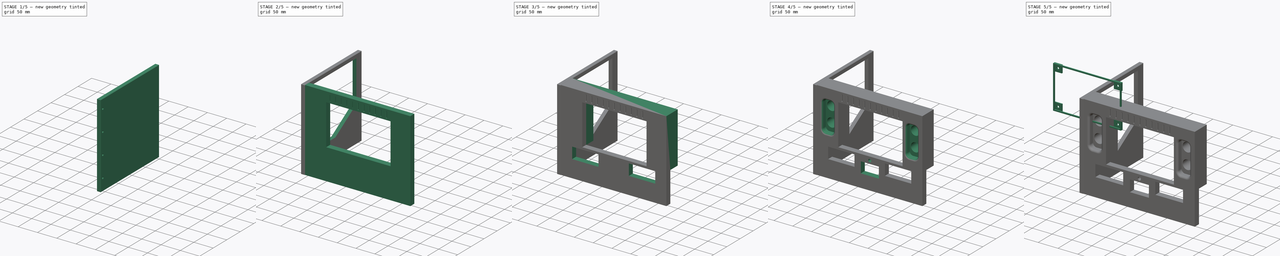
[diagram: build sequence overview — one tinted view per stage of 5, left to right]
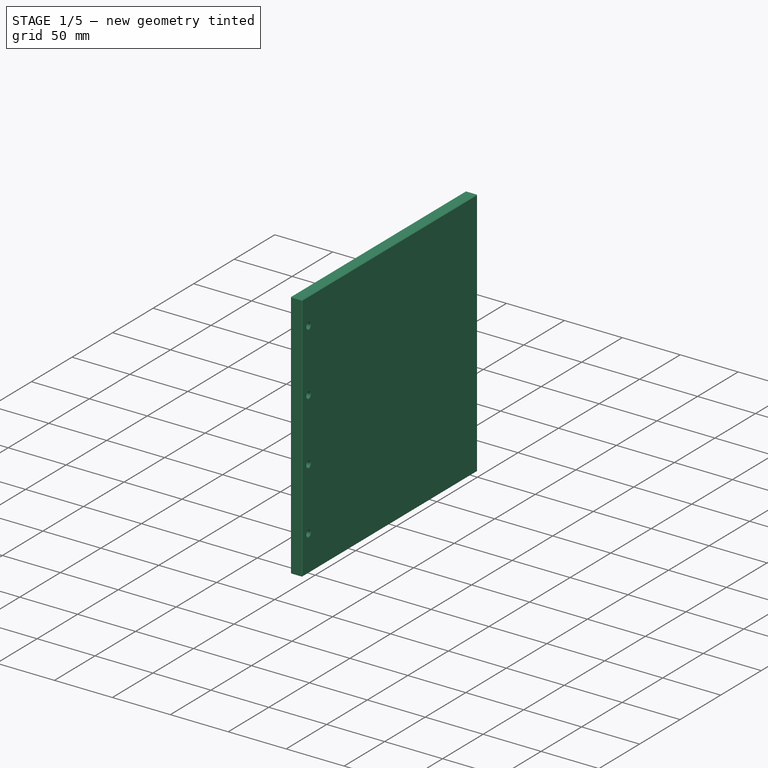
[diagram: stage 1 of 5 — iso view after this stage's code; geometry added in this stage tinted green]
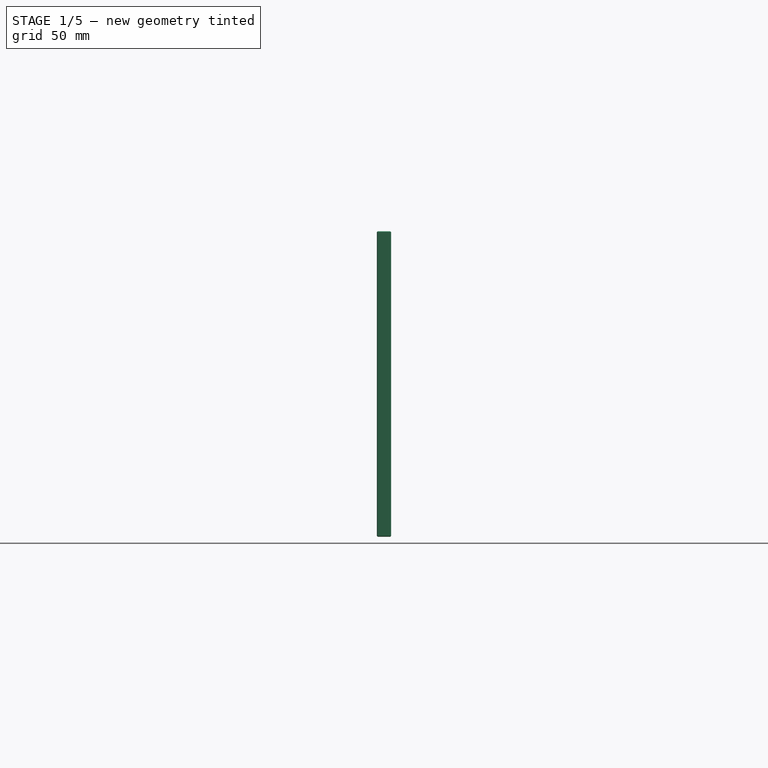
[diagram: stage 1 of 5 — front view after this stage's code; geometry added in this stage tinted green]
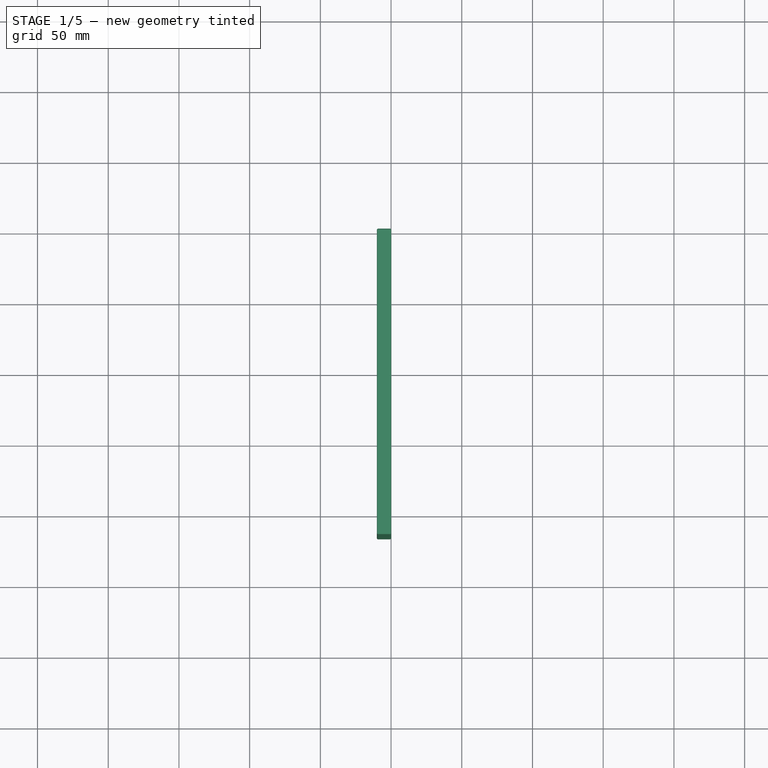
[diagram: stage 1 of 5 — top view after this stage's code; geometry added in this stage tinted green]
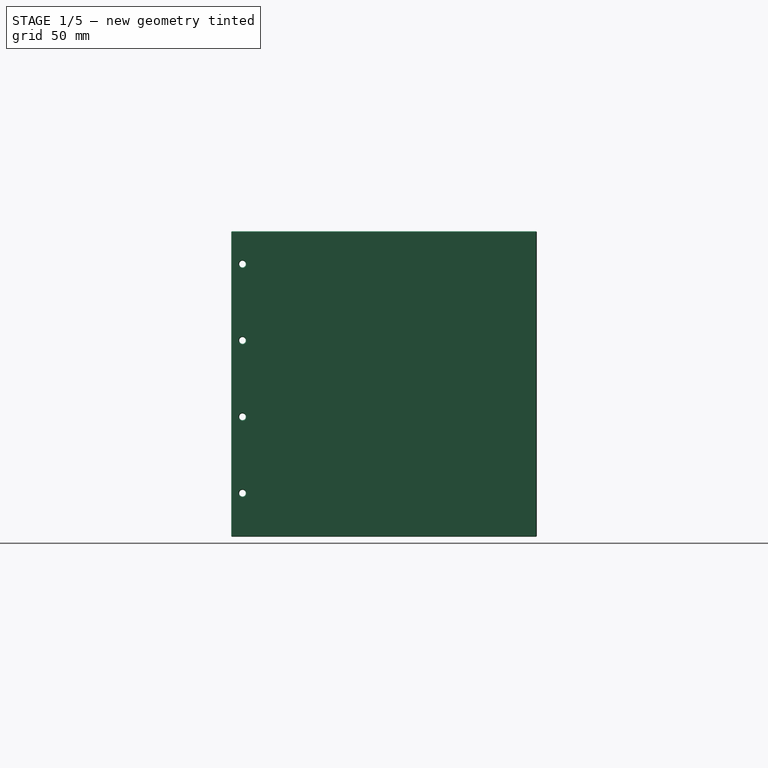
[diagram: stage 1 of 5 — right view after this stage's code; geometry added in this stage tinted green]
FCSTD DOCUMENT  (FreeCAD 1.0R39285 (Git))
Label: TerminalDawn_Screen
License: All rights reserved
LicenseURL: https://en.wikipedia.org/wiki/All_rights_reserved
objects: Sketcher::SketchObject×17, PartDesign::Pocket×10, PartDesign::Pad×6, PartDesign::Fillet×4, PartDesign::Point×4, PartDesign::Body×3, PartDesign::Chamfer×2
note: 107 computed .brp shape members not serialized (recipe doc carries the construction recipe); baked Part::Feature solids carry a one-line shape summary decoded from their .brp

FEATURE [Sketcher::SketchObject] Sketch011
  ArcFitTolerance = 1e-06
  AttachmentSupport = -> [YZ_Plane002]
  FullyConstrained = false
  MakeInternals = false
  MapMode = 5
  Placement = pos=(0,0,0) rot=(0.57735,0.57735,0.57735;2.0944rad)
  sketch-geometry (4):
    g0: LineSegment StartX=-16 StartY=0 StartZ=0 EndX=-16 EndY=-216 EndZ=0
    g1: LineSegment StartX=-16 StartY=-216 StartZ=0 EndX=200 EndY=-216 EndZ=0
    g2: LineSegment StartX=200 StartY=-216 StartZ=0 EndX=200 EndY=0 EndZ=0
    g3: LineSegment StartX=200 StartY=0 StartZ=0 EndX=-16 EndY=0 EndZ=0
  constraints (11):
    c: Coincident(g0,g1)
    c: Coincident(g1,g2)
    c: Coincident(g2,g3)
    c: Coincident(g3,g0)
    c: Vertical(g0)
    c: Vertical(g2)
    c: Horizontal(g1)
    c: Horizontal(g3)
    c: Distance(g0,g2) = 216
    c: Distance(g1,g3) = 216
    c: PointOnObject(g0,g-1)
FEATURE [PartDesign::Pad] Pad005
  Direction = (1,0,0)
  Length = 10
  Length2 = 10
  Placement = pos=(0,0,0) rot=(1,1,1;2.0944rad)
  Profile = -> Sketch011
  ReferenceAxis = -> Sketch011 [N_Axis]
  Refine = true
  Reversed = true
  Suppressed = false
  Type = 0
FEATURE [PartDesign::Point] DatumPoint
  AttacherType = Attacher::AttachEnginePoint
  AttachmentSupport = -> [Chamfer]
  MapMode = 36
  Placement = pos=(0,-7.06308,-23.2149) rot=(0.57735,-0.57735,-0.57735;4.18879rad)
FEATURE [PartDesign::Point] DatumPoint001
  AttacherType = Attacher::AttachEnginePoint
  AttachmentSupport = -> [Chamfer]
  MapMode = 36
  Placement = pos=(0,-7.06308,-77.2149) rot=(0.57735,-0.57735,-0.57735;4.18879rad)
FEATURE [PartDesign::Point] DatumPoint002
  AttacherType = Attacher::AttachEnginePoint
  AttachmentSupport = -> [Chamfer]
  MapMode = 36
  Placement = pos=(0,-7.06308,-131.215) rot=(0.57735,-0.57735,-0.57735;4.18879rad)
FEATURE [PartDesign::Point] DatumPoint003
  AttacherType = Attacher::AttachEnginePoint
  AttachmentSupport = -> [Chamfer]
  MapMode = 36
  Placement = pos=(0,-7.06308,-185.215) rot=(0.57735,-0.57735,-0.57735;4.18879rad)
FEATURE [PartDesign::Body] Body001  label="MonitorMount"
  AllowCompound = false
  Group = -> [Sketch,Pad,Sketch001,Pocket,Sketch002,Fillet,Fillet001,Fillet002,Sketch005,Pad003,Sketch006,Pad004,Sketch007,Pocket001,Sketch008,Pocket002,Pocket004,Fillet003,Sketch009,Pocket005,Sketch010,Pocket006,Sketch012,Pocket007,Chamfer,DatumPoint,DatumPoint001,DatumPoint002,DatumPoint003]
  Origin = -> Origin001
  Placement = pos=(-1.57631,-1,-1.8e-15) rot=(0,0,1;0rad)
  Tip = -> Chamfer
FEATURE [Sketcher::SketchObject] Sketch013
  ArcFitTolerance = 1e-06
  AttachmentSupport = -> [Pad005]
  FullyConstrained = true
  MakeInternals = false
  MapMode = 5
  Placement = pos=(-10,0,0) rot=(0.57735,0.57735,-0.57735;4.18879rad)
FEATURE [Sketcher::SketchObject] Sketch014
  ArcFitTolerance = 1e-06
  AttachmentSupport = -> [Pad005]
  FullyConstrained = false
  MakeInternals = false
  MapMode = 5
  Placement = pos=(-10,0,0) rot=(0.57735,0.57735,-0.57735;4.18879rad)
  sketch-geometry (4):
    g0: Circle CenterX=-8.06064 CenterY=185.203 CenterZ=0 NormalX=0 NormalY=0 NormalZ=1 AngleXU=0 Radius=2.35
    g1: Circle CenterX=-8.06064 CenterY=131.203 CenterZ=0 NormalX=0 NormalY=0 NormalZ=1 AngleXU=0 Radius=2.35
    g2: Circle CenterX=-8.06064 CenterY=77.2031 CenterZ=0 NormalX=0 NormalY=0 NormalZ=1 AngleXU=0 Radius=2.35
    g3: Circle CenterX=-8.06064 CenterY=23.2031 CenterZ=0 NormalX=0 NormalY=0 NormalZ=1 AngleXU=0 Radius=2.35
  constraints (4):
    c: Diameter(g0) = 4.7
    c: Diameter(g1) = 4.7
    c: Diameter(g2) = 4.7
    c: Diameter(g3) = 4.7
FEATURE [PartDesign::Pocket] Pocket008
  BaseFeature = -> Pad005
  Direction = (1,0,0)
  Length = 11
  Length2 = 5
  Placement = pos=(0,0,0) rot=(1,1,1;2.0944rad)
  Profile = -> Sketch014
  ReferenceAxis = -> Sketch014 [N_Axis]
  Refine = true
  Suppressed = false
  Type = 0
FEATURE [Sketcher::SketchObject] Sketch015
  ArcFitTolerance = 1e-06
  AttachmentSupport = -> [Pocket008]
  FullyConstrained = false
  MakeInternals = false
  MapMode = 5
  Placement = pos=(-10,2.2e-15,-1.1e-15) rot=(0.57735,0.57735,-0.57735;4.18879rad)
  sketch-geometry (4):
    g0: Circle CenterX=-8.0719 CenterY=23.1477 CenterZ=0 NormalX=0 NormalY=0 NormalZ=1 AngleXU=0 Radius=3.75
    g1: Circle CenterX=-8.0719 CenterY=77.1477 CenterZ=0 NormalX=0 NormalY=0 NormalZ=1 AngleXU=0 Radius=3.75
    g2: Circle CenterX=-8.0719 CenterY=131.148 CenterZ=0 NormalX=0 NormalY=0 NormalZ=1 AngleXU=0 Radius=3.75
    g3: Circle CenterX=-8.0719 CenterY=185.148 CenterZ=0 NormalX=0 NormalY=0 NormalZ=1 AngleXU=0 Radius=3.75
  constraints (4):
    c: Diameter(g0) = 7.5
    c: Diameter(g1) = 7.5
    c: Diameter(g2) = 7.5
    c: Diameter(g3) = 7.5
FEATURE [PartDesign::Pocket] Pocket009
  BaseFeature = -> Pocket008
  Direction = (1,0,0)
  Length = 5
  Length2 = 5
  Placement = pos=(0,0,0) rot=(1,1,1;2.0944rad)
  Profile = -> Sketch015
  ReferenceAxis = -> Sketch015 [N_Axis]
  Refine = true
  Suppressed = false
  Type = 0
FEATURE [PartDesign::Chamfer] Chamfer001
  Angle = 45
  Base = -> Pocket009 [Edge19,Edge20,Edge17,Edge18]
  BaseFeature = -> Pocket009
  ChamferType = 0
  FlipDirection = false
  Placement = pos=(0,0,0) rot=(1,1,1;2.0944rad)
  Refine = true
  Size = 0.5
  Size2 = 1
  SupportTransform = false
  Suppressed = false
  UseAllEdges = true
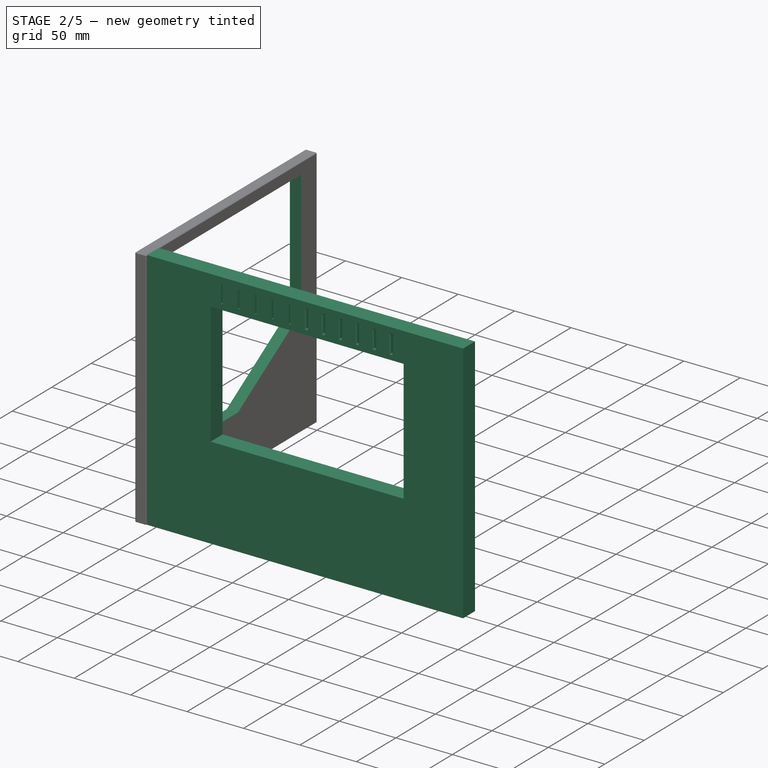
[diagram: stage 2 of 5 — iso view after this stage's code; geometry added in this stage tinted green]
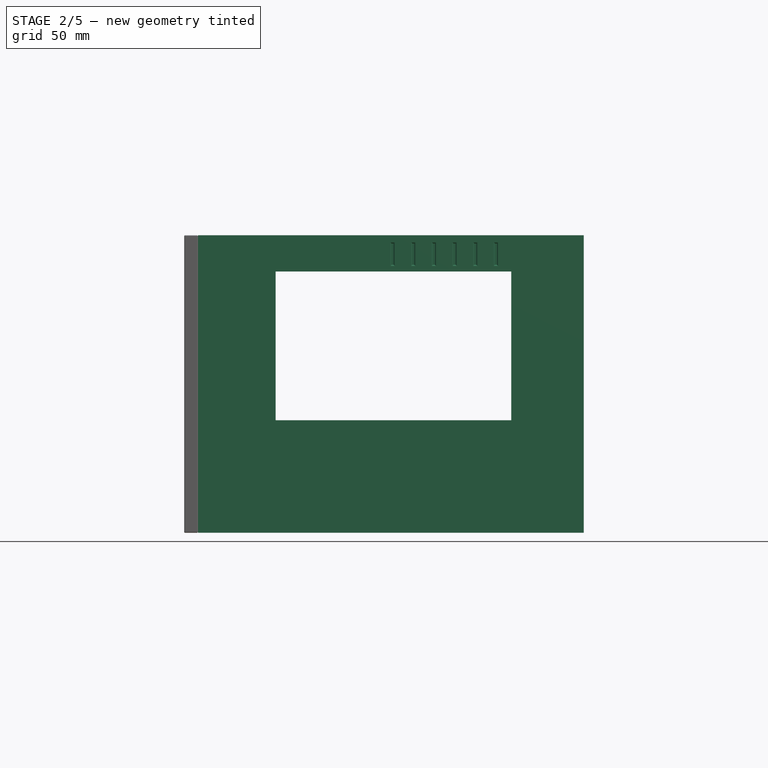
[diagram: stage 2 of 5 — front view after this stage's code; geometry added in this stage tinted green]
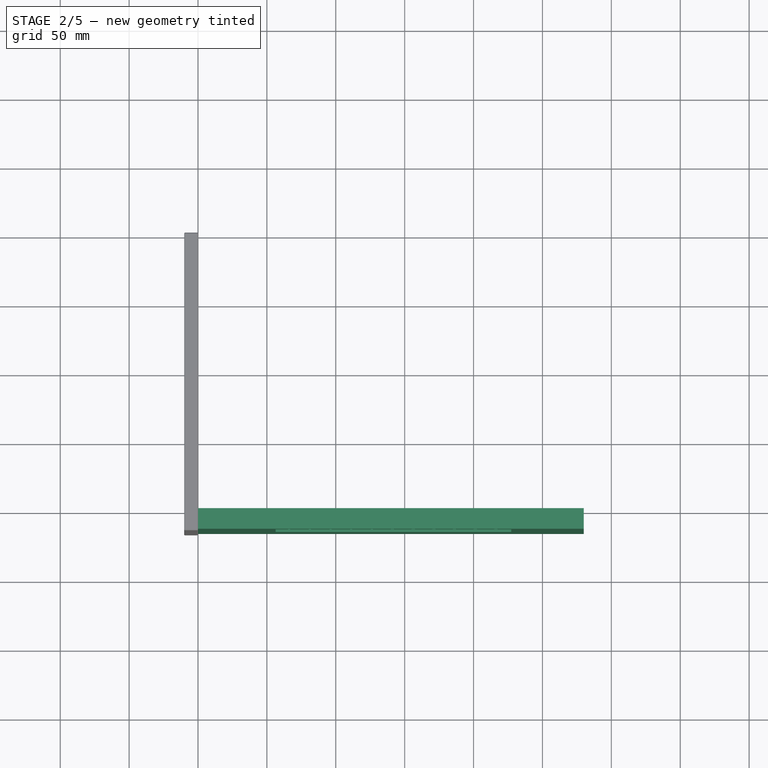
[diagram: stage 2 of 5 — top view after this stage's code; geometry added in this stage tinted green]
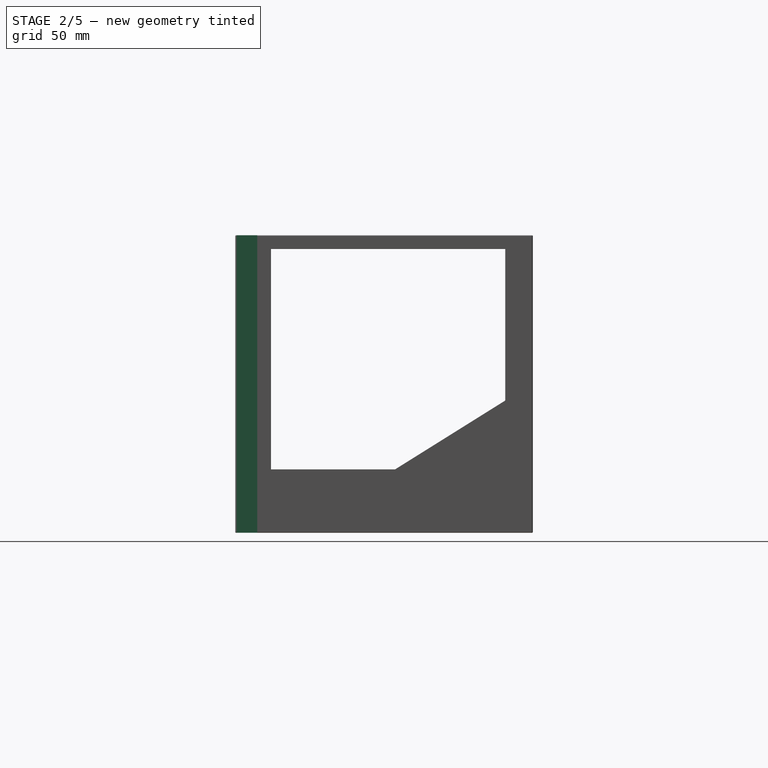
[diagram: stage 2 of 5 — right view after this stage's code; geometry added in this stage tinted green]
FEATURE [Sketcher::SketchObject] Sketch
  ArcFitTolerance = 1e-06
  AttachmentSupport = -> [XZ_Plane001]
  FullyConstrained = false
  MakeInternals = false
  MapMode = 5
  Placement = pos=(0,0,0) rot=(1,0,0;1.5708rad)
  sketch-geometry (8):
    g0: LineSegment StartX=0 StartY=0 StartZ=0 EndX=0 EndY=-216 EndZ=0
    g1: LineSegment StartX=0 StartY=-216 StartZ=0 EndX=280 EndY=-216 EndZ=0
    g2: LineSegment StartX=280 StartY=-216 StartZ=0 EndX=280 EndY=0 EndZ=0
    g3: LineSegment StartX=280 StartY=0 StartZ=0 EndX=0 EndY=0 EndZ=0
    g4: LineSegment StartX=56.3168 StartY=-26.3072 StartZ=0 EndX=56.3168 EndY=-134.307 EndZ=0
    g5: LineSegment StartX=56.3168 StartY=-134.307 StartZ=0 EndX=227.317 EndY=-134.307 EndZ=0
    g6: LineSegment StartX=227.317 StartY=-134.307 StartZ=0 EndX=227.317 EndY=-26.3072 EndZ=0
    g7: LineSegment StartX=227.317 StartY=-26.3072 StartZ=0 EndX=56.3168 EndY=-26.3072 EndZ=0
  constraints (21):
    c: Coincident(g0,g1)
    c: Coincident(g1,g2)
    c: Coincident(g2,g3)
    c: Coincident(g3,g0)
    c: Vertical(g0)
    c: Vertical(g2)
    c: Horizontal(g1)
    c: Horizontal(g3)
    c: Distance(g0,g2) = 280
    c: Distance(g1,g3) = 216
    c: Coincident(g0,g-1)
    c: Coincident(g4,g5)
    c: Coincident(g5,g6)
    c: Coincident(g6,g7)
    c: Coincident(g7,g4)
    c: Vertical(g4)
    c: Vertical(g6)
    c: Horizontal(g5)
    c: Horizontal(g7)
    c: Distance(g4,g6) = 171
    c: Distance(g5,g7) = 108
FEATURE [PartDesign::Pad] Pad
  Direction = (0,-1,2e-16)
  Length = 15
  Length2 = 10
  Placement = pos=(0,0,0) rot=(1,0,0;1.5708rad)
  Profile = -> Sketch
  ReferenceAxis = -> Sketch [N_Axis]
  Refine = true
  Suppressed = false
  Type = 0
FEATURE [Sketcher::SketchObject] Sketch001  label="MicroSD Slots"
  ArcFitTolerance = 1e-06
  AttachmentSupport = -> [Pad]
  FullyConstrained = false
  MakeInternals = false
  MapMode = 5
  Placement = pos=(0,-15,3.3e-15) rot=(1,0,0;1.5708rad)
  sketch-geometry (44):
    g0: LineSegment StartX=65.5 StartY=-6 StartZ=0 EndX=65.5 EndY=-21.5 EndZ=0
    g1: LineSegment StartX=65.5 StartY=-21.5 StartZ=0 EndX=67 EndY=-21.5 EndZ=0
    g2: LineSegment StartX=67 StartY=-21.5 StartZ=0 EndX=67 EndY=-6 EndZ=0
    g3: LineSegment StartX=67 StartY=-6 StartZ=0 EndX=65.5 EndY=-6 EndZ=0
    g4: LineSegment StartX=80.5 StartY=-6 StartZ=0 EndX=80.5 EndY=-21.5 EndZ=0
    g5: LineSegment StartX=80.5 StartY=-21.5 StartZ=0 EndX=82 EndY=-21.5 EndZ=0
    g6: LineSegment StartX=82 StartY=-21.5 StartZ=0 EndX=82 EndY=-6 EndZ=0
    g7: LineSegment StartX=82 StartY=-6 StartZ=0 EndX=80.5 EndY=-6 EndZ=0
    g8: LineSegment StartX=95.5 StartY=-6 StartZ=0 EndX=95.5 EndY=-21.5 EndZ=0
    g9: LineSegment StartX=95.5 StartY=-21.5 StartZ=0 EndX=97 EndY=-21.5 EndZ=0
    g10: LineSegment StartX=97 StartY=-21.5 StartZ=0 EndX=97 EndY=-6 EndZ=0
    g11: LineSegment StartX=97 StartY=-6 StartZ=0 EndX=95.5 EndY=-6 EndZ=0
    g12: LineSegment StartX=110.5 StartY=-6 StartZ=0 EndX=110.5 EndY=-21.5 EndZ=0
    g13: LineSegment StartX=110.5 StartY=-21.5 StartZ=0 EndX=112 EndY=-21.5 EndZ=0
    g14: LineSegment StartX=112 StartY=-21.5 StartZ=0 EndX=112 EndY=-6 EndZ=0
    g15: LineSegment StartX=112 StartY=-6 StartZ=0 EndX=110.5 EndY=-6 EndZ=0
    g16: LineSegment StartX=125.5 StartY=-6 StartZ=0 EndX=125.5 EndY=-21.5 EndZ=0
    g17: LineSegment StartX=125.5 StartY=-21.5 StartZ=0 EndX=127 EndY=-21.5 EndZ=0
    g18: LineSegment StartX=127 StartY=-21.5 StartZ=0 EndX=127 EndY=-6 EndZ=0
    g19: LineSegment StartX=127 StartY=-6 StartZ=0 EndX=125.5 EndY=-6 EndZ=0
    g20: LineSegment StartX=140.5 StartY=-6 StartZ=0 EndX=140.5 EndY=-21.5 EndZ=0
    g21: LineSegment StartX=140.5 StartY=-21.5 StartZ=0 EndX=142 EndY=-21.5 EndZ=0
    g22: LineSegment StartX=142 StartY=-21.5 StartZ=0 EndX=142 EndY=-6 EndZ=0
    g23: LineSegment StartX=142 StartY=-6 StartZ=0 EndX=140.5 EndY=-6 EndZ=0
    g24: LineSegment StartX=155.5 StartY=-6 StartZ=0 EndX=155.5 EndY=-21.5 EndZ=0
    g25: LineSegment StartX=155.5 StartY=-21.5 StartZ=0 EndX=157 EndY=-21.5 EndZ=0
    g26: LineSegment StartX=157 StartY=-21.5 StartZ=0 EndX=157 EndY=-6 EndZ=0
    g27: LineSegment StartX=157 StartY=-6 StartZ=0 EndX=155.5 EndY=-6 EndZ=0
    g28: LineSegment StartX=170.5 StartY=-6 StartZ=0 EndX=170.5 EndY=-21.5 EndZ=0
    g29: LineSegment StartX=170.5 StartY=-21.5 StartZ=0 EndX=172 EndY=-21.5 EndZ=0
    g30: LineSegment StartX=172 StartY=-21.5 StartZ=0 EndX=172 EndY=-6 EndZ=0
    g31: LineSegment StartX=172 StartY=-6 StartZ=0 EndX=170.5 EndY=-6 EndZ=0
    g32: LineSegment StartX=185.5 StartY=-6 StartZ=0 EndX=185.5 EndY=-21.5 EndZ=0
    g33: LineSegment StartX=185.5 StartY=-21.5 StartZ=0 EndX=187 EndY=-21.5 EndZ=0
    g34: LineSegment StartX=187 StartY=-21.5 StartZ=0 EndX=187 EndY=-6 EndZ=0
    g35: LineSegment StartX=187 StartY=-6 StartZ=0 EndX=185.5 EndY=-6 EndZ=0
    g36: LineSegment StartX=200.5 StartY=-6 StartZ=0 EndX=200.5 EndY=-21.5 EndZ=0
    g37: LineSegment StartX=200.5 StartY=-21.5 StartZ=0 EndX=202 EndY=-21.5 EndZ=0
    g38: LineSegment StartX=202 StartY=-21.5 StartZ=0 EndX=202 EndY=-6 EndZ=0
    g39: LineSegment StartX=202 StartY=-6 StartZ=0 EndX=200.5 EndY=-6 EndZ=0
    g40: LineSegment StartX=215.5 StartY=-6 StartZ=0 EndX=215.5 EndY=-21.5 EndZ=0
    g41: LineSegment StartX=215.5 StartY=-21.5 StartZ=0 EndX=217 EndY=-21.5 EndZ=0
    g42: LineSegment StartX=217 StartY=-21.5 StartZ=0 EndX=217 EndY=-6 EndZ=0
    g43: LineSegment StartX=217 StartY=-6 StartZ=0 EndX=215.5 EndY=-6 EndZ=0
  constraints (66):
    c: Coincident(g0,g1)
    c: Coincident(g1,g2)
    c: Coincident(g2,g3)
    c: Coincident(g3,g0)
    c: Distance(g1,g3) = 15.5
    c: Distance(g0,g2) = 1.5
    c: Coincident(g4,g5)
    c: Coincident(g8,g9)
    c: Coincident(g12,g13)
    c: Coincident(g16,g17)
    c: Coincident(g20,g21)
    c: Coincident(g24,g25)
    c: Coincident(g28,g29)
    c: Coincident(g32,g33)
    c: Coincident(g36,g37)
    c: Coincident(g40,g41)
    c: Coincident(g5,g6)
    c: Coincident(g9,g10)
    c: Coincident(g13,g14)
    c: Coincident(g17,g18)
    c: Coincident(g21,g22)
    c: Coincident(g25,g26)
    c: Coincident(g29,g30)
    c: Coincident(g33,g34)
    c: Coincident(g37,g38)
    c: Coincident(g41,g42)
    c: Coincident(g6,g7)
    c: Coincident(g10,g11)
    c: Coincident(g14,g15)
    c: Coincident(g18,g19)
    c: Coincident(g22,g23)
    c: Coincident(g26,g27)
    c: Coincident(g30,g31)
    c: Coincident(g34,g35)
    c: Coincident(g38,g39)
    c: Coincident(g42,g43)
    c: Coincident(g7,g4)
    c: Coincident(g11,g8)
    c: Coincident(g15,g12)
    c: Coincident(g19,g16)
    c: Coincident(g23,g20)
    c: Coincident(g27,g24)
    c: Coincident(g31,g28)
    c: Coincident(g35,g32)
    c: Coincident(g39,g36)
    c: Coincident(g43,g40)
    c: Distance(g5,g7) = 15.5
    c: Distance(g9,g11) = 15.5
    c: Distance(g13,g15) = 15.5
    c: Distance(g17,g19) = 15.5
    c: Distance(g21,g23) = 15.5
    c: Distance(g25,g27) = 15.5
    c: Distance(g29,g31) = 15.5
    c: Distance(g33,g35) = 15.5
    c: Distance(g37,g39) = 15.5
    c: Distance(g41,g43) = 15.5
    c: Distance(g4,g6) = 1.5
    c: Distance(g8,g10) = 1.5
    c: Distance(g12,g14) = 1.5
    c: Distance(g16,g18) = 1.5
    c: Distance(g20,g22) = 1.5
    c: Distance(g24,g26) = 1.5
    c: Distance(g28,g30) = 1.5
    c: Distance(g32,g34) = 1.5
    c: Distance(g36,g38) = 1.5
    c: Distance(g40,g42) = 1.5
FEATURE [PartDesign::Pocket] Pocket
  BaseFeature = -> Pad
  Direction = (0,1,-2e-16)
  Length = 8
  Length2 = 5
  Placement = pos=(0,0,0) rot=(1,0,0;1.5708rad)
  Profile = -> Sketch001
  ReferenceAxis = -> Sketch001 [N_Axis]
  Refine = true
  Suppressed = false
  Type = 0
FEATURE [Sketcher::SketchObject] Sketch002
  ArcFitTolerance = 1e-06
  AttachmentSupport = -> [Pocket]
  FullyConstrained = true
  MakeInternals = false
  MapMode = 5
  Placement = pos=(56.3168,0,0) rot=(0.707107,0,0.707107;3.14159rad)
FEATURE [PartDesign::Fillet] Fillet
  Base = -> Pocket [Edge62,Vertex57,Edge61,Edge64,Edge63]
  BaseFeature = -> Pocket
  Placement = pos=(0,0,0) rot=(1,0,0;1.5708rad)
  Radius = 1
  Refine = true
  SupportTransform = false
  Suppressed = false
  UseAllEdges = false
FEATURE [PartDesign::Fillet] Fillet001
  Base = -> Fillet [Edge49,Edge50,Edge52,Edge51,Edge47,Edge46,Edge48,Edge45,Edge41,Edge44,Edge42,Edge43,Edge39,Edge40,Edge38,Edge37,Edge29,Edge30,Edge32,Edge31]
  BaseFeature = -> Fillet
  Placement = pos=(0,0,0) rot=(1,0,0;1.5708rad)
  Radius = 1
  Refine = true
  SupportTransform = false
  Suppressed = false
  UseAllEdges = false
FEATURE [Sketcher::SketchObject] Sketch016
  ArcFitTolerance = 1e-06
  AttachmentSupport = -> [Chamfer001]
  FullyConstrained = false
  MakeInternals = false
  MapMode = 5
  Placement = pos=(-10,4.4e-15,-2.2e-15) rot=(0.57735,0.57735,-0.57735;4.18879rad)
  sketch-geometry (5):
    g0: LineSegment StartX=180 StartY=10 StartZ=0 EndX=10 EndY=10 EndZ=0
    g1: LineSegment StartX=10 StartY=10 StartZ=0 EndX=10 EndY=170 EndZ=0
    g2: LineSegment StartX=10 StartY=170 StartZ=0 EndX=100 EndY=170 EndZ=0
    g3: LineSegment StartX=100 StartY=170 StartZ=0 EndX=180 EndY=120 EndZ=0
    g4: LineSegment StartX=180 StartY=120 StartZ=0 EndX=180 EndY=10 EndZ=0
  constraints (9):
    c: Horizontal(g0)
    c: Coincident(g0,g1)
    c: Vertical(g1)
    c: Coincident(g1,g2)
    c: Horizontal(g2)
    c: Coincident(g2,g3)
    c: Coincident(g3,g4)
    c: Coincident(g4,g0)
    c: Vertical(g4)
FEATURE [PartDesign::Pocket] Pocket010
  BaseFeature = -> Chamfer001
  Direction = (1,0,0)
  Length = 10
  Length2 = 5
  Placement = pos=(0,0,0) rot=(1,1,1;2.0944rad)
  Profile = -> Sketch016
  ReferenceAxis = -> Sketch016 [N_Axis]
  Refine = true
  Suppressed = false
  Type = 0
FEATURE [PartDesign::Body] Body002  label="Left Side"
  AllowCompound = false
  Group = -> [Sketch011,Pad005,Sketch013,Sketch014,Pocket008,Sketch015,Pocket009,Chamfer001,Sketch016,Pocket010]
  Origin = -> Origin002
  Tip = -> Pocket010
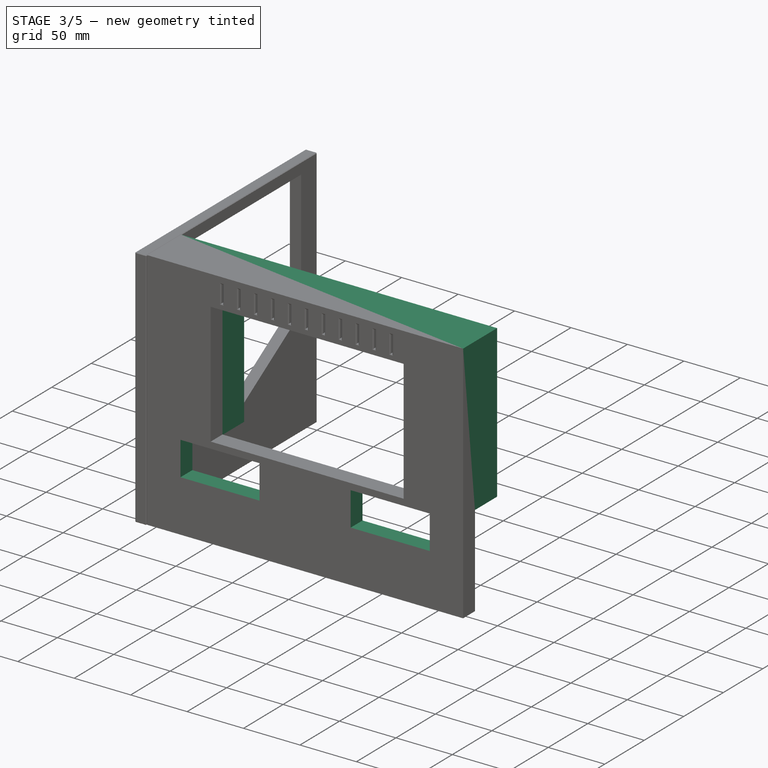
[diagram: stage 3 of 5 — iso view after this stage's code; geometry added in this stage tinted green]
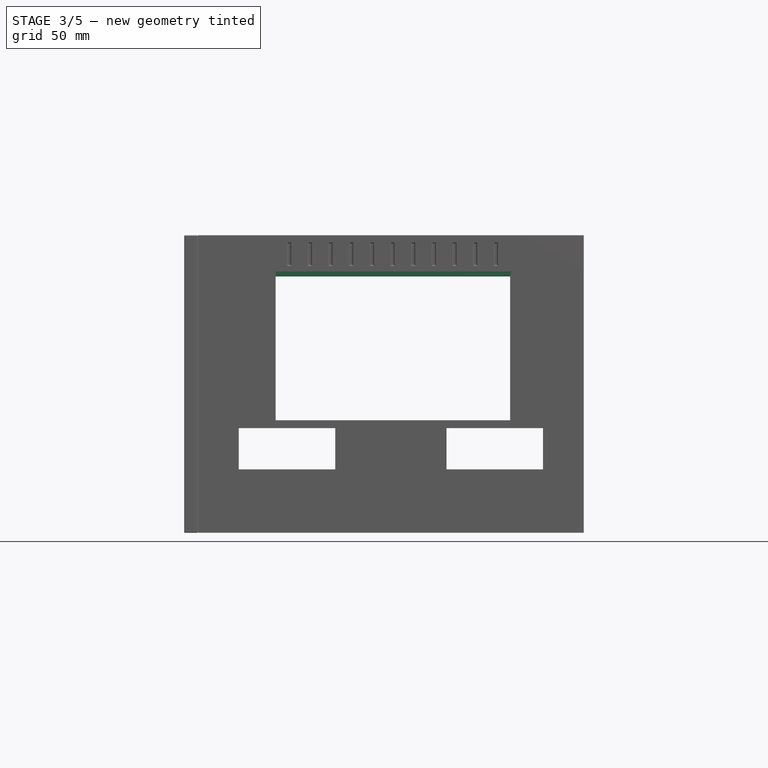
[diagram: stage 3 of 5 — front view after this stage's code; geometry added in this stage tinted green]
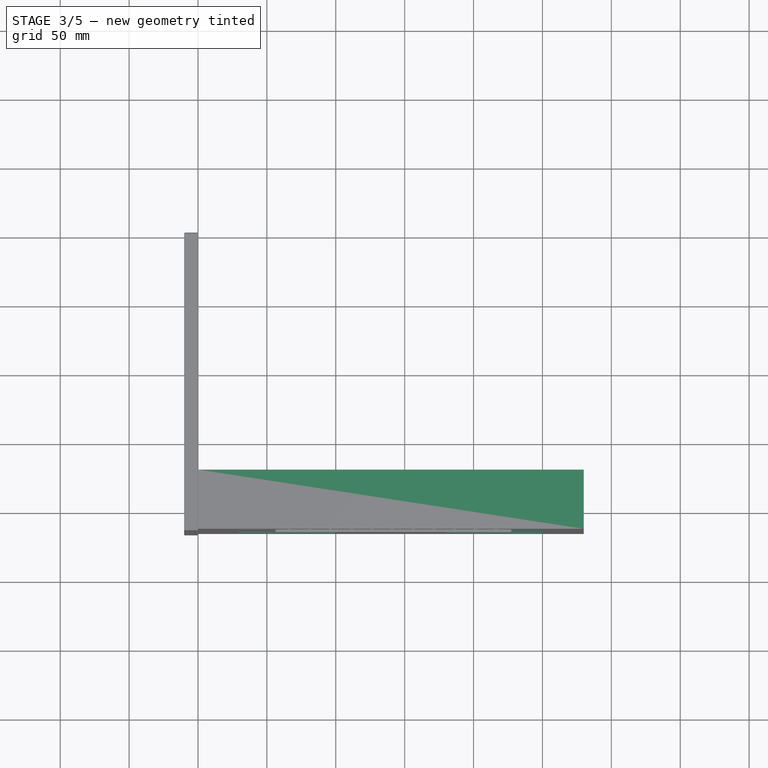
[diagram: stage 3 of 5 — top view after this stage's code; geometry added in this stage tinted green]
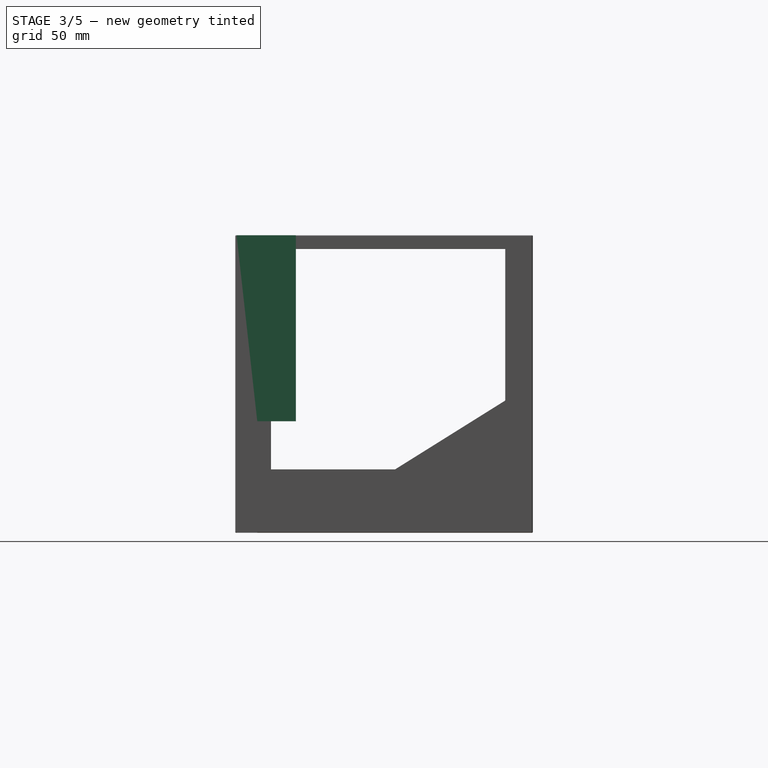
[diagram: stage 3 of 5 — right view after this stage's code; geometry added in this stage tinted green]
FEATURE [PartDesign::Fillet] Fillet002
  Base = -> Fillet001 [Edge31,Edge30,Edge32,Edge29,Edge25,Edge26,Edge28,Edge27,Vertex24,Edge23,Edge24,Edge22,Edge21,Edge17,Edge18,Edge20,Edge19,Edge15,Edge16,Edge14,Edge13]
  BaseFeature = -> Fillet001
  Placement = pos=(0,0,0) rot=(1,0,0;1.5708rad)
  Radius = 1
  Refine = true
  SupportTransform = false
  Suppressed = false
  UseAllEdges = false
FEATURE [PartDesign::Body] Body  label="Bezel"
  AllowCompound = false
  Group = -> [Sketch003,Pad001,Sketch004,Pad002]
  Origin = -> Origin
  Placement = pos=(141,12,-81) rot=(1,0,0;6.02139rad)
  Tip = -> Pad002
FEATURE [Sketcher::SketchObject] Sketch005
  ArcFitTolerance = 1e-06
  AttachmentSupport = -> [Fillet002]
  FullyConstrained = false
  MakeInternals = false
  MapMode = 5
  Placement = pos=(0,-2e-16,0) rot=(-1,0,0;1.5708rad)
  sketch-geometry (4):
    g0: LineSegment StartX=0 StartY=0 StartZ=0 EndX=280 EndY=0 EndZ=0
    g1: LineSegment StartX=280 StartY=0 StartZ=0 EndX=280 EndY=30 EndZ=0
    g2: LineSegment StartX=280 StartY=30 StartZ=0 EndX=0 EndY=30 EndZ=0
    g3: LineSegment StartX=0 StartY=30 StartZ=0 EndX=0 EndY=0 EndZ=0
  constraints (7):
    c: Coincident(g0,g1)
    c: Coincident(g3,g0)
    c: Horizontal(g0)
    c: Horizontal(g2)
    c: Vertical(g1)
    c: Vertical(g3)
    c: Coincident(g0,g-1)
FEATURE [PartDesign::Pad] Pad003
  BaseFeature = -> Fillet002
  Direction = (0,1,2e-16)
  Length = 28
  Length2 = 10
  Placement = pos=(0,0,0) rot=(1,0,0;1.5708rad)
  Profile = -> Sketch005
  ReferenceAxis = -> Sketch005 [N_Axis]
  Refine = true
  Suppressed = false
  Type = 0
FEATURE [Sketcher::SketchObject] Sketch006
  ArcFitTolerance = 1e-06
  AttachmentSupport = -> [Pad003]
  FullyConstrained = false
  MakeInternals = false
  MapMode = 5
  Placement = pos=(0,0,-30) rot=(1,0,0;3.14159rad)
  sketch-geometry (8):
    g0: LineSegment StartX=0 StartY=0 StartZ=0 EndX=0 EndY=-27.9996 EndZ=0
    g1: LineSegment StartX=0 StartY=-27.9996 StartZ=0 EndX=55.8792 EndY=-27.9996 EndZ=0
    g2: LineSegment StartX=55.8792 StartY=-27.9996 StartZ=0 EndX=55.8792 EndY=0 EndZ=0
    g3: LineSegment StartX=55.8792 StartY=0 StartZ=0 EndX=0 EndY=0 EndZ=0
    g4: LineSegment StartX=280 StartY=0 StartZ=0 EndX=226.57 EndY=0 EndZ=0
    g5: LineSegment StartX=226.57 StartY=0 StartZ=0 EndX=226.57 EndY=-27.9959 EndZ=0
    g6: LineSegment StartX=226.57 StartY=-27.9959 StartZ=0 EndX=280 EndY=-27.9959 EndZ=0
    g7: LineSegment StartX=280 StartY=-27.9959 StartZ=0 EndX=280 EndY=0 EndZ=0
  constraints (17):
    c: Coincident(g0,g1)
    c: Coincident(g1,g2)
    c: Coincident(g2,g3)
    c: Coincident(g3,g0)
    c: Vertical(g0)
    c: Vertical(g2)
    c: Horizontal(g1)
    c: Horizontal(g3)
    c: Coincident(g0,g-1)
    c: Coincident(g4,g5)
    c: Coincident(g5,g6)
    c: Coincident(g6,g7)
    c: Coincident(g7,g4)
    c: Horizontal(g4)
    c: Horizontal(g6)
    c: Vertical(g5)
    c: Vertical(g7)
FEATURE [PartDesign::Pad] Pad004
  BaseFeature = -> Pad003
  Direction = (0,0,-1)
  Length = 105
  Length2 = 10
  Placement = pos=(0,0,0) rot=(1,0,0;1.5708rad)
  Profile = -> Sketch006
  ReferenceAxis = -> Sketch006 [N_Axis]
  Refine = true
  Suppressed = false
  Type = 0
FEATURE [Sketcher::SketchObject] Sketch007
  ArcFitTolerance = 1e-06
  AttachmentSupport = -> [Pad004]
  FullyConstrained = false
  MakeInternals = false
  MapMode = 5
  Placement = pos=(0,-15,3.3e-15) rot=(1,0,0;1.5708rad)
  sketch-geometry (8):
    g0: LineSegment StartX=29.5944 StartY=-140 StartZ=0 EndX=29.5944 EndY=-170 EndZ=0
    g1: LineSegment StartX=29.5944 StartY=-170 StartZ=0 EndX=99.5944 EndY=-170 EndZ=0
    g2: LineSegment StartX=99.5944 StartY=-170 StartZ=0 EndX=99.5944 EndY=-140 EndZ=0
    g3: LineSegment StartX=99.5944 StartY=-140 StartZ=0 EndX=29.5944 EndY=-140 EndZ=0
    g4: LineSegment StartX=250.406 StartY=-140 StartZ=0 EndX=250.406 EndY=-170 EndZ=0
    g5: LineSegment StartX=250.406 StartY=-170 StartZ=0 EndX=180.406 EndY=-170 EndZ=0
    g6: LineSegment StartX=180.406 StartY=-170 StartZ=0 EndX=180.406 EndY=-140 EndZ=0
    g7: LineSegment StartX=180.406 StartY=-140 StartZ=0 EndX=250.406 EndY=-140 EndZ=0
  constraints (12):
    c: Coincident(g0,g1)
    c: Coincident(g1,g2)
    c: Coincident(g2,g3)
    c: Coincident(g3,g0)
    c: Distance(g1,g3) = 30
    c: Distance(g0,g2) = 70
    c: Coincident(g4,g5)
    c: Coincident(g5,g6)
    c: Coincident(g6,g7)
    c: Coincident(g7,g4)
    c: Distance(g5,g7) = 30
    c: Distance(g4,g6) = 70
FEATURE [PartDesign::Pocket] Pocket001  label="Speakers"
  BaseFeature = -> Pad004
  Direction = (0,1,-2e-16)
  Length = 50
  Length2 = 5
  Placement = pos=(0,0,0) rot=(1,0,0;1.5708rad)
  Profile = -> Sketch007
  ReferenceAxis = -> Sketch007 [N_Axis]
  Refine = true
  Suppressed = false
  Type = 0
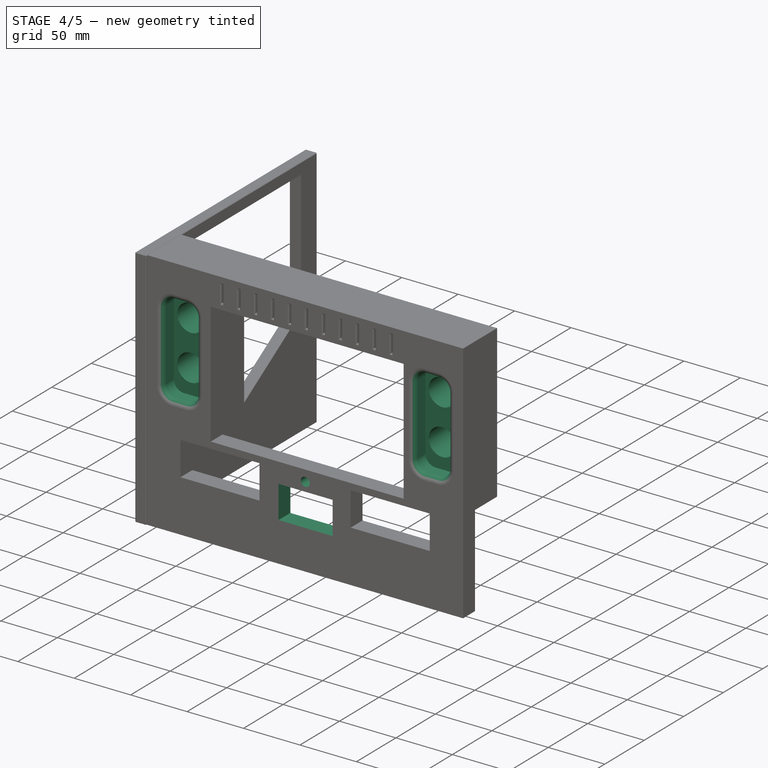
[diagram: stage 4 of 5 — iso view after this stage's code; geometry added in this stage tinted green]
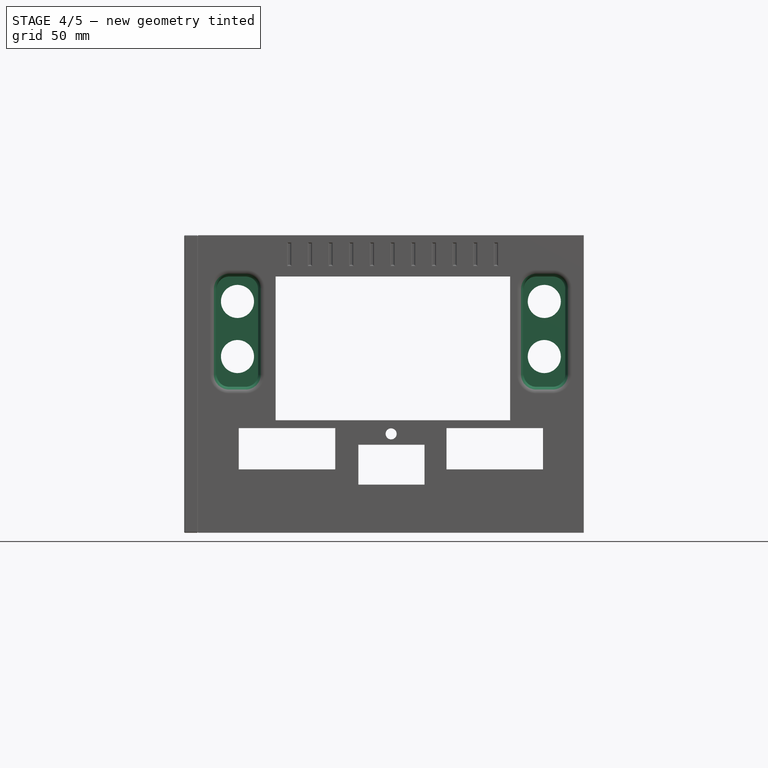
[diagram: stage 4 of 5 — front view after this stage's code; geometry added in this stage tinted green]
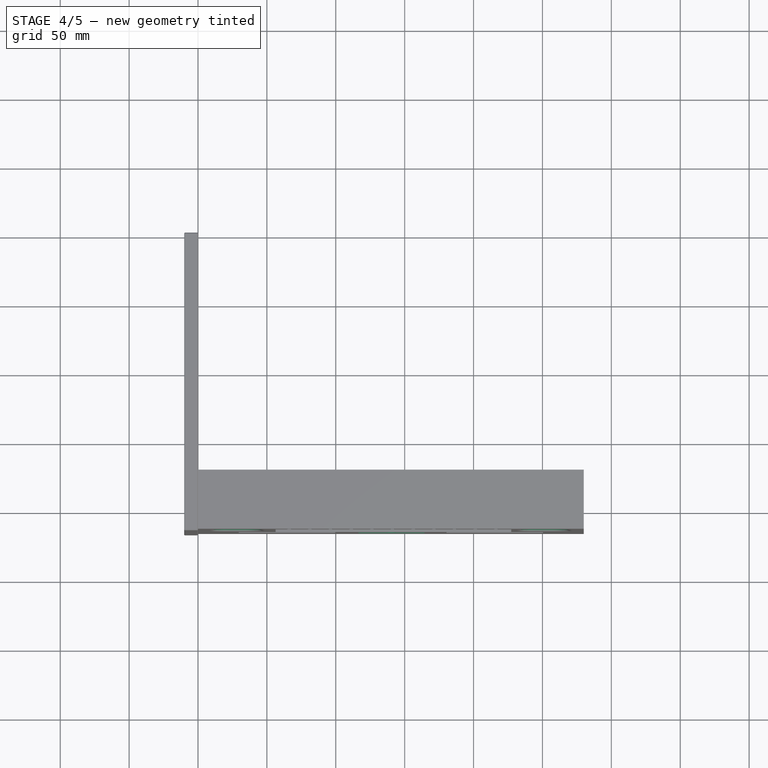
[diagram: stage 4 of 5 — top view after this stage's code; geometry added in this stage tinted green]
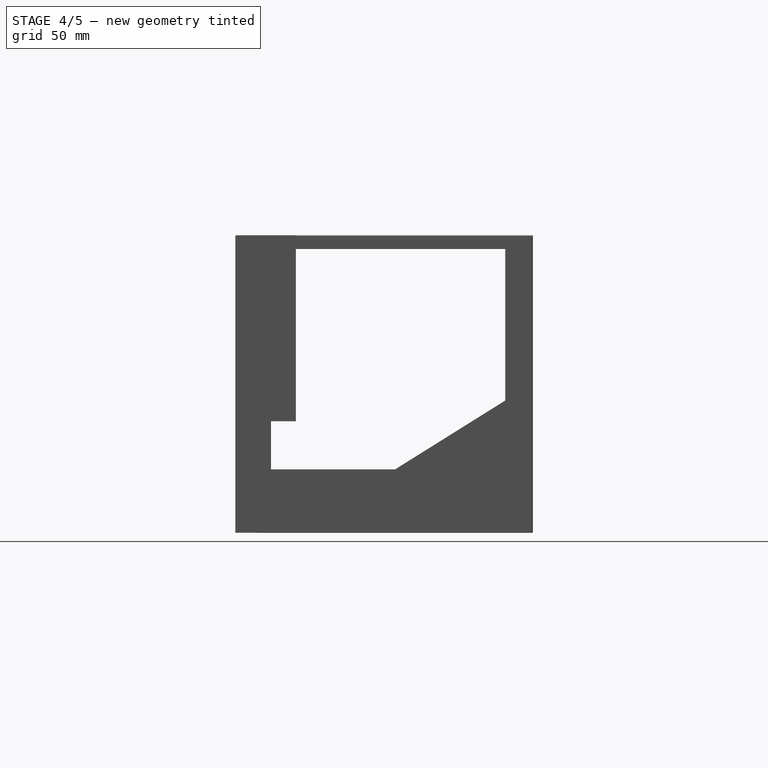
[diagram: stage 4 of 5 — right view after this stage's code; geometry added in this stage tinted green]
FEATURE [Sketcher::SketchObject] Sketch008
  ArcFitTolerance = 1e-06
  AttachmentSupport = -> [Pocket001]
  FullyConstrained = false
  MakeInternals = false
  MapMode = 5
  Placement = pos=(0,-15,3.3e-15) rot=(1,0,0;1.5708rad)
  sketch-geometry (20):
    g0: LineSegment StartX=22.5372 StartY=-110 StartZ=0 EndX=34.5372 EndY=-110 EndZ=0
    g1: LineSegment StartX=43.5372 StartY=-101 StartZ=0 EndX=43.5372 EndY=-39 EndZ=0
    g2: LineSegment StartX=34.5372 StartY=-30 StartZ=0 EndX=22.5372 EndY=-30 EndZ=0
    g3: LineSegment StartX=13.5372 StartY=-39 StartZ=0 EndX=13.5372 EndY=-101 EndZ=0
    g4: ArcOfCircle CenterX=22.5372 CenterY=-101 CenterZ=0 NormalX=0 NormalY=0 NormalZ=1 AngleXU=0 Radius=9 StartAngle=3.14159 EndAngle=4.71239
    g5: ArcOfCircle CenterX=34.5372 CenterY=-101 CenterZ=0 NormalX=0 NormalY=0 NormalZ=1 AngleXU=0 Radius=9 StartAngle=4.71239 EndAngle=6.28319
    g6: ArcOfCircle CenterX=34.5372 CenterY=-39 CenterZ=0 NormalX=0 NormalY=0 NormalZ=1 AngleXU=0 Radius=9 StartAngle=5.9e-15 EndAngle=1.5708
    g7: ArcOfCircle CenterX=22.5372 CenterY=-39 CenterZ=0 NormalX=0 NormalY=0 NormalZ=1 AngleXU=0 Radius=9 StartAngle=1.5708 EndAngle=3.14159
    g8: GeomPoint [constr] X=13.5372 Y=-110 Z=0
    g9: GeomPoint [constr] X=43.5372 Y=-30 Z=0
    g10: LineSegment StartX=257.463 StartY=-110 StartZ=0 EndX=245.463 EndY=-110 EndZ=0
    g11: LineSegment StartX=236.463 StartY=-101 StartZ=0 EndX=236.463 EndY=-39 EndZ=0
    g12: LineSegment StartX=245.463 StartY=-30 StartZ=0 EndX=257.463 EndY=-30 EndZ=0
    g13: LineSegment StartX=266.463 StartY=-39 StartZ=0 EndX=266.463 EndY=-101 EndZ=0
    g14: ArcOfCircle CenterX=257.463 CenterY=-101 CenterZ=0 NormalX=0 NormalY=0 NormalZ=1 AngleXU=0 Radius=9 StartAngle=4.71239 EndAngle=6.28319
    g15: ArcOfCircle CenterX=245.463 CenterY=-101 CenterZ=0 NormalX=0 NormalY=0 NormalZ=1 AngleXU=0 Radius=9 StartAngle=3.14159 EndAngle=4.71239
    g16: ArcOfCircle CenterX=245.463 CenterY=-39 CenterZ=0 NormalX=0 NormalY=0 NormalZ=1 AngleXU=0 Radius=9 StartAngle=1.5708 EndAngle=3.14159
    g17: ArcOfCircle CenterX=257.463 CenterY=-39 CenterZ=0 NormalX=0 NormalY=0 NormalZ=1 AngleXU=0 Radius=9 StartAngle=-7.1e-15 EndAngle=1.5708
    g18: GeomPoint [constr] X=266.463 Y=-110 Z=0
    g19: GeomPoint [constr] X=236.463 Y=-30 Z=0
  constraints (32):
    c: Tangent(g0,g4) = -1.5708
    c: Tangent(g0,g5) = -1.5708
    c: Tangent(g1,g5) = -1.5708
    c: Tangent(g1,g6) = -1.5708
    c: Tangent(g2,g6) = -1.5708
    c: Tangent(g2,g7) = -1.5708
    c: Tangent(g3,g7) = -1.5708
    c: Tangent(g3,g4) = -1.5708
    c: Equal(g4,g5)
    c: Equal(g5,g6)
    c: Equal(g6,g7)
    c: PointOnObject(g8,g0)
    c: PointOnObject(g8,g3)
    c: PointOnObject(g9,g1)
    c: PointOnObject(g9,g2)
    c: Radius(g5) = 9
    c: Tangent(g10,g14) = 1.5708
    c: Tangent(g10,g15) = 1.5708
    c: Tangent(g11,g15) = 1.5708
    c: Tangent(g11,g16) = 1.5708
    c: Tangent(g12,g16) = 1.5708
    c: Tangent(g12,g17) = 1.5708
    c: Tangent(g13,g17) = 1.5708
    c: Tangent(g13,g14) = 1.5708
    c: Equal(g14,g15)
    c: Equal(g15,g16)
    c: Equal(g16,g17)
    c: PointOnObject(g18,g10)
    c: PointOnObject(g18,g13)
    c: PointOnObject(g19,g11)
    c: PointOnObject(g19,g12)
    c: Radius(g15) = 9
FEATURE [PartDesign::Pocket] Pocket002  label="Horizontal slot"
  BaseFeature = -> Pocket001
  Direction = (0,1,-2e-16)
  Length = 5
  Length2 = 5
  Placement = pos=(0,0,0) rot=(1,0,0;1.5708rad)
  Profile = -> Sketch008
  ReferenceAxis = -> Sketch008 [N_Axis]
  Refine = true
  Suppressed = false
  Type = 0
FEATURE [PartDesign::Pocket] Pocket004
  BaseFeature = -> Pocket002
  Direction = (0,1,-2e-16)
  Length = 14.5
  Length2 = 5
  Placement = pos=(0,0,0) rot=(1,0,0;1.5708rad)
  Profile = -> Sketch008
  ReferenceAxis = -> Sketch008 [N_Axis]
  Refine = true
  Suppressed = false
  Type = 0
FEATURE [PartDesign::Fillet] Fillet003
  Base = -> Pocket004 [Edge80,Edge81,Edge11,Edge82,Edge76,Edge77,Edge78,Edge79,Edge26,Edge27,Edge20,Edge21,Edge22,Vertex23,Edge23,Edge24,Edge25]
  BaseFeature = -> Pocket004
  Placement = pos=(0,0,0) rot=(1,0,0;1.5708rad)
  Radius = 5
  Refine = true
  SupportTransform = false
  Suppressed = false
  UseAllEdges = false
FEATURE [Sketcher::SketchObject] Sketch009
  ArcFitTolerance = 1e-06
  AttachmentSupport = -> [Fillet003]
  FullyConstrained = false
  MakeInternals = false
  MapMode = 5
  Placement = pos=(0,-0.5,1e-16) rot=(1,0,0;1.5708rad)
  sketch-geometry (4):
    g0: Circle CenterX=28.6582 CenterY=-48.0746 CenterZ=0 NormalX=0 NormalY=0 NormalZ=1 AngleXU=0 Radius=12
    g1: Circle CenterX=28.6582 CenterY=-88.0746 CenterZ=0 NormalX=0 NormalY=0 NormalZ=1 AngleXU=0 Radius=12
    g2: Circle CenterX=251.342 CenterY=-48.0746 CenterZ=0 NormalX=0 NormalY=0 NormalZ=1 AngleXU=0 Radius=12
    g3: Circle CenterX=251.342 CenterY=-88.0746 CenterZ=0 NormalX=0 NormalY=0 NormalZ=1 AngleXU=0 Radius=12
  constraints (4):
    c: Diameter(g0) = 24
    c: Diameter(g1) = 24
    c: Diameter(g2) = 24
    c: Diameter(g3) = 24
FEATURE [PartDesign::Pocket] Pocket005
  BaseFeature = -> Fillet003
  Direction = (0,1,-2e-16)
  Length = 30
  Length2 = 5
  Placement = pos=(0,0,0) rot=(1,0,0;1.5708rad)
  Profile = -> Sketch009
  ReferenceAxis = -> Sketch009 [N_Axis]
  Refine = true
  Suppressed = false
  Type = 0
FEATURE [Sketcher::SketchObject] Sketch010
  ArcFitTolerance = 1e-06
  AttachmentSupport = -> [Pocket005]
  FullyConstrained = false
  MakeInternals = false
  MapMode = 5
  Placement = pos=(0,-15,3.3e-15) rot=(1,0,0;1.5708rad)
  sketch-geometry (5):
    g0: LineSegment StartX=116.431 StartY=-181.056 StartZ=0 EndX=164.431 EndY=-181.056 EndZ=0
    g1: LineSegment StartX=164.431 StartY=-181.056 StartZ=0 EndX=164.431 EndY=-152.056 EndZ=0
    g2: LineSegment StartX=164.431 StartY=-152.056 StartZ=0 EndX=116.431 EndY=-152.056 EndZ=0
    g3: LineSegment StartX=116.431 StartY=-152.056 StartZ=0 EndX=116.431 EndY=-181.056 EndZ=0
    g4: Circle CenterX=140.169 CenterY=-144.183 CenterZ=0 NormalX=0 NormalY=0 NormalZ=1 AngleXU=0 Radius=4
  constraints (11):
    c: Coincident(g0,g1)
    c: Coincident(g1,g2)
    c: Coincident(g2,g3)
    c: Coincident(g3,g0)
    c: Horizontal(g0)
    c: Horizontal(g2)
    c: Vertical(g1)
    c: Vertical(g3)
    c: Distance(g1,g3) = 48
    c: Distance(g0,g2) = 29
    c: Diameter(g4) = 8
FEATURE [PartDesign::Pocket] Pocket006
  BaseFeature = -> Pocket005
  Direction = (0,1,-2e-16)
  Length = 15
  Length2 = 5
  Placement = pos=(0,0,0) rot=(1,0,0;1.5708rad)
  Profile = -> Sketch010
  ReferenceAxis = -> Sketch010 [N_Axis]
  Refine = true
  Suppressed = false
  Type = 0
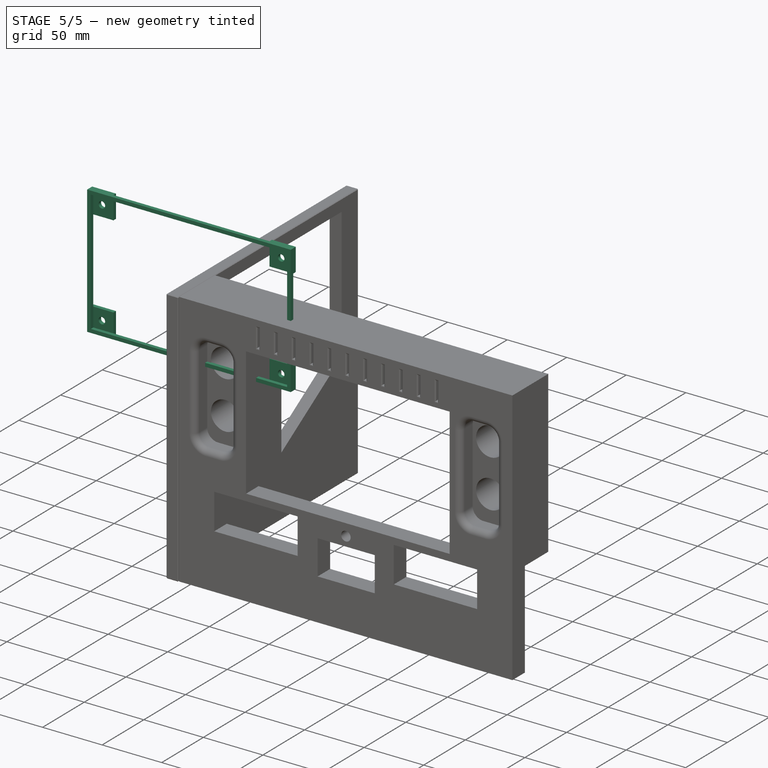
[diagram: stage 5 of 5 — iso view after this stage's code; geometry added in this stage tinted green]
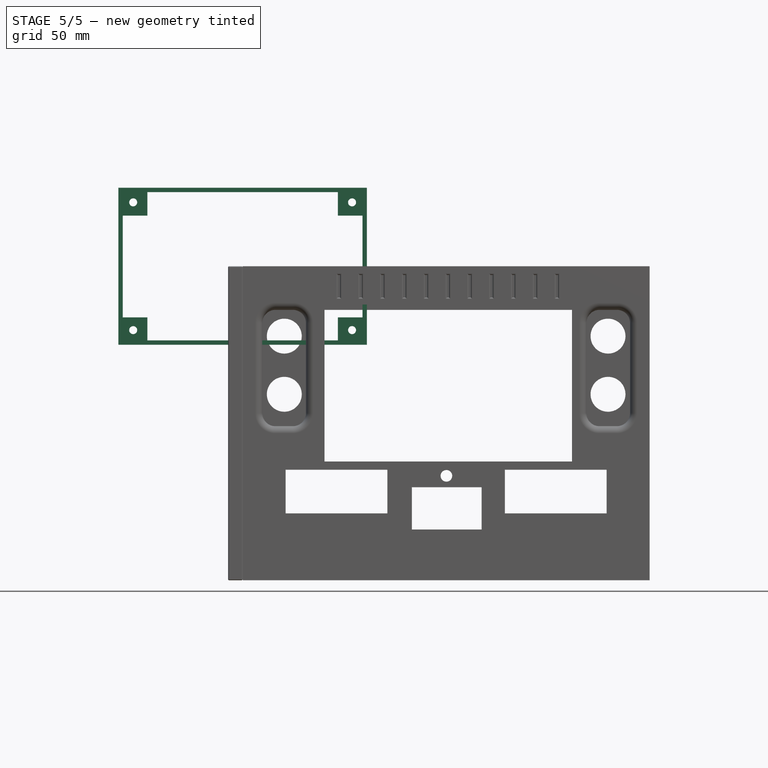
[diagram: stage 5 of 5 — front view after this stage's code; geometry added in this stage tinted green]
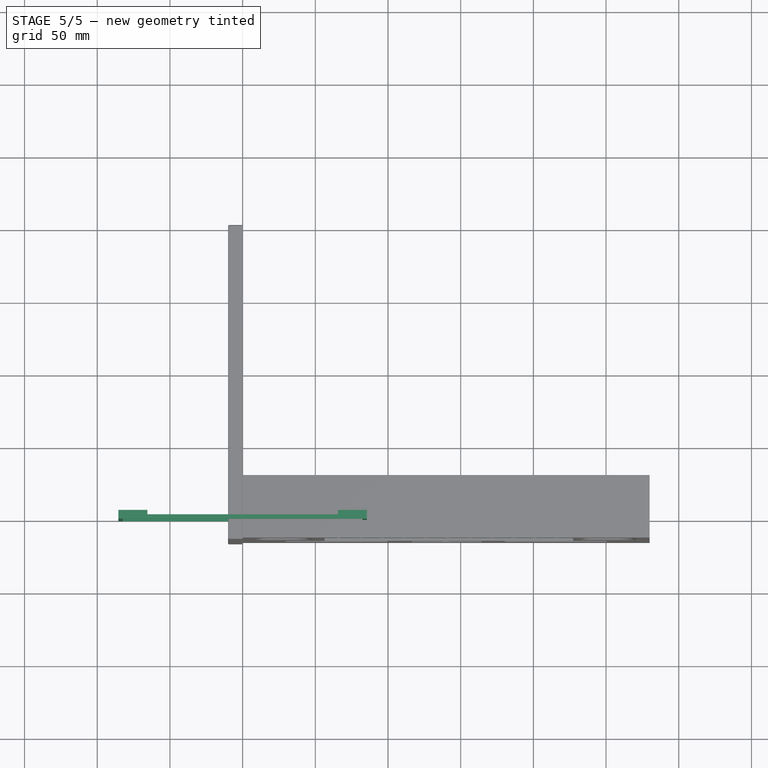
[diagram: stage 5 of 5 — top view after this stage's code; geometry added in this stage tinted green]
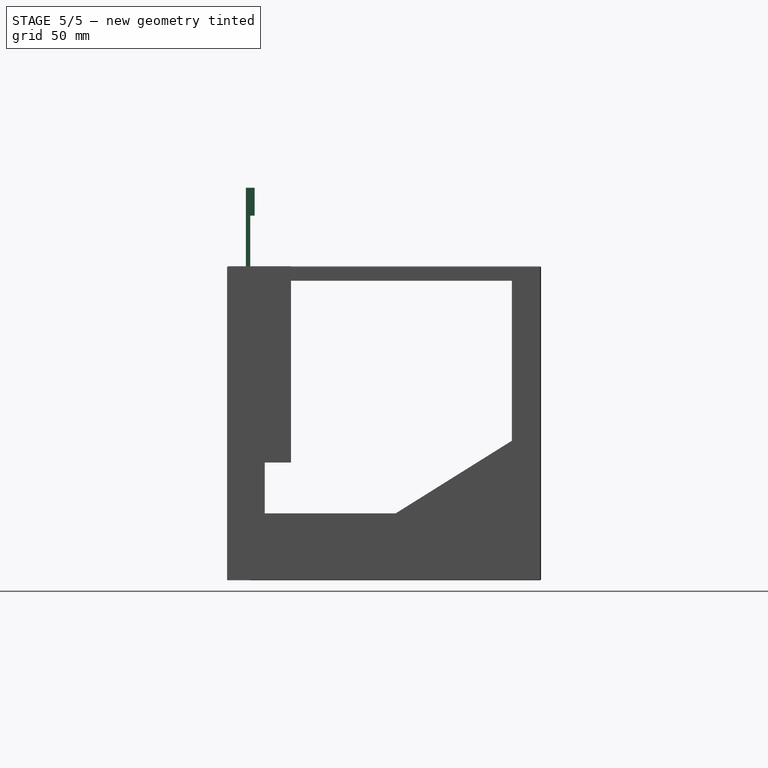
[diagram: stage 5 of 5 — right view after this stage's code; geometry added in this stage tinted green]
FEATURE [Sketcher::SketchObject] Sketch003
  ArcFitTolerance = 1e-06
  AttachmentSupport = -> [XZ_Plane]
  FullyConstrained = false
  MakeInternals = false
  MapMode = 5
  Placement = pos=(0,0,0) rot=(1,0,0;1.5708rad)
  sketch-geometry (9):
    g0: LineSegment StartX=-85.5 StartY=-54 StartZ=0 EndX=85.5 EndY=-54 EndZ=0
    g1: LineSegment StartX=85.5 StartY=-54 StartZ=0 EndX=85.5 EndY=54 EndZ=0
    g2: LineSegment StartX=85.5 StartY=54 StartZ=0 EndX=-85.5 EndY=54 EndZ=0
    g3: LineSegment StartX=-85.5 StartY=54 StartZ=0 EndX=-85.5 EndY=-54 EndZ=0
    g4: GeomPoint [constr] X=0 Y=0 Z=0
    g5: LineSegment StartX=-82.445 StartY=51 StartZ=0 EndX=-82.445 EndY=-51 EndZ=0
    g6: LineSegment StartX=-82.445 StartY=-51 StartZ=0 EndX=82.445 EndY=-51 EndZ=0
    g7: LineSegment StartX=82.445 StartY=-51 StartZ=0 EndX=82.445 EndY=51 EndZ=0
    g8: LineSegment StartX=82.445 StartY=51 StartZ=0 EndX=-82.445 EndY=51 EndZ=0
  constraints (16):
    c: Coincident(g0,g1)
    c: Coincident(g1,g2)
    c: Coincident(g2,g3)
    c: Coincident(g3,g0)
    c: Horizontal(g0)
    c: Horizontal(g2)
    c: Vertical(g1)
    c: Vertical(g3)
    c: Symmetric(g2,g0,g4)
    c: Distance(g1,g3) = 171
    c: Distance(g0,g2) = 108
    c: Coincident(g4,g-1)
    c: Coincident(g5,g6)
    c: Coincident(g5,g8)
    c: Coincident(g6,g7)
    c: Coincident(g7,g8)
FEATURE [PartDesign::Pad] Pad001
  Direction = (0,-1,2e-16)
  Length = 3
  Length2 = 10
  Placement = pos=(0,0,0) rot=(1,0,0;1.5708rad)
  Profile = -> Sketch003
  ReferenceAxis = -> Sketch003 [N_Axis]
  Refine = true
  Suppressed = false
  Type = 0
FEATURE [Sketcher::SketchObject] Sketch004  label="Sketch001"
  ArcFitTolerance = 1e-06
  AttachmentSupport = -> [Pad001]
  FullyConstrained = false
  MakeInternals = false
  MapMode = 5
  Placement = pos=(0,0,0) rot=(-1,0,0;1.5708rad)
  sketch-geometry (20):
    g0: Circle CenterX=-75.2808 CenterY=43.9483 CenterZ=0 NormalX=0 NormalY=0 NormalZ=1 AngleXU=0 Radius=2.75
    g1: LineSegment StartX=-65.5087 StartY=54.0047 StartZ=0 EndX=-85.5087 EndY=54.0047 EndZ=0
    g2: LineSegment StartX=-65.5087 StartY=-53.9953 StartZ=0 EndX=-65.5087 EndY=-34.8404 EndZ=0
    g3: LineSegment StartX=-85.5087 StartY=54.0047 StartZ=0 EndX=-85.5087 EndY=35.1373 EndZ=0
    g4: LineSegment StartX=-85.5087 StartY=-53.9953 StartZ=0 EndX=-65.5087 EndY=-53.9953 EndZ=0
    g5: Circle CenterX=-75.2808 CenterY=-43.9483 CenterZ=0 NormalX=0 NormalY=0 NormalZ=1 AngleXU=0 Radius=2.75
    g6: Circle CenterX=75.2808 CenterY=43.9483 CenterZ=0 NormalX=0 NormalY=0 NormalZ=1 AngleXU=0 Radius=2.75
    g7: LineSegment StartX=65.5087 StartY=54.0047 StartZ=0 EndX=85.5087 EndY=54.0047 EndZ=0
    g8: LineSegment StartX=65.5087 StartY=-53.9953 StartZ=0 EndX=65.5087 EndY=-34.8404 EndZ=0
    g9: LineSegment StartX=85.5087 StartY=54.0047 StartZ=0 EndX=85.5087 EndY=35.1373 EndZ=0
    g10: LineSegment StartX=85.5087 StartY=-53.9953 StartZ=0 EndX=65.5087 EndY=-53.9953 EndZ=0
    g11: Circle CenterX=75.2808 CenterY=-43.9483 CenterZ=0 NormalX=0 NormalY=0 NormalZ=1 AngleXU=0 Radius=2.75
    g12: LineSegment StartX=-85.5087 StartY=-34.8404 StartZ=0 EndX=-65.5087 EndY=-34.8404 EndZ=0
    g13: LineSegment StartX=85.5087 StartY=35.1373 StartZ=0 EndX=65.5087 EndY=35.1373 EndZ=0
    g14: LineSegment StartX=-65.5087 StartY=35.1373 StartZ=0 EndX=-65.5087 EndY=54.0047 EndZ=0
    g15: LineSegment StartX=-85.5087 StartY=-34.8404 StartZ=0 EndX=-85.5087 EndY=-53.9953 EndZ=0
    g16: LineSegment StartX=-65.5087 StartY=35.1373 StartZ=0 EndX=-85.5087 EndY=35.1373 EndZ=0
    g17: LineSegment StartX=85.5087 StartY=-34.8404 StartZ=0 EndX=85.5087 EndY=-53.9953 EndZ=0
    g18: LineSegment StartX=65.5087 StartY=35.1373 StartZ=0 EndX=65.5087 EndY=54.0047 EndZ=0
    g19: LineSegment StartX=65.5087 StartY=-34.8404 StartZ=0 EndX=85.5087 EndY=-34.8404 EndZ=0
  constraints (31):
    c: Diameter(g0) = 5.5
    c: Coincident(g15,g4)
    c: Coincident(g4,g2)
    c: Coincident(g14,g1)
    c: Coincident(g1,g3)
    c: Vertical(g3)
    c: Vertical(g2)
    c: Horizontal(g4)
    c: Horizontal(g1)
    c: Distance(g3,g14) = 20
    c: Distance(g4,g1) = 108
    c: Diameter(g5) = 5.5
    c: Diameter(g6) = 5.5
    c: Coincident(g17,g10)
    c: Coincident(g10,g8)
    c: Coincident(g18,g7)
    c: Coincident(g7,g9)
    c: Distance(g9,g18) = 20
    c: Distance(g10,g7) = 108
    c: Diameter(g11) = 5.5
    c: Horizontal(g12)
    c: Horizontal(g13)
    c: PointOnObject(g19,g17)
    c: PointOnObject(g14,g16)
    c: PointOnObject(g13,g18)
    c: PointOnObject(g16,g14)
    c: PointOnObject(g17,g19)
    c: PointOnObject(g8,g19)
    c: PointOnObject(g18,g13)
    c: Coincident(g12,g2)
    c: PointOnObject(g19,g8)
FEATURE [PartDesign::Pad] Pad002
  BaseFeature = -> Pad001
  Direction = (0,1,2e-16)
  Length = 3
  Length2 = 10
  Placement = pos=(0,0,0) rot=(1,0,0;1.5708rad)
  Profile = -> Sketch004
  ReferenceAxis = -> Sketch004 [N_Axis]
  Refine = true
  Suppressed = false
  Type = 0
FEATURE [Sketcher::SketchObject] Sketch012
  ArcFitTolerance = 1e-06
  AttachmentSupport = -> [Pocket006]
  FullyConstrained = false
  MakeInternals = false
  MapMode = 5
  Placement = pos=(0,0,0) rot=(0.707107,0,-0.707107;3.14159rad)
  sketch-geometry (4):
    g0: Circle CenterX=23.2149 CenterY=7.06308 CenterZ=0 NormalX=0 NormalY=0 NormalZ=1 AngleXU=0 Radius=2.85
    g1: Circle CenterX=77.2149 CenterY=7.06308 CenterZ=0 NormalX=0 NormalY=0 NormalZ=1 AngleXU=0 Radius=2.85
    g2: Circle CenterX=131.215 CenterY=7.06308 CenterZ=0 NormalX=0 NormalY=0 NormalZ=1 AngleXU=0 Radius=2.85
    g3: Circle CenterX=185.215 CenterY=7.06308 CenterZ=0 NormalX=0 NormalY=0 NormalZ=1 AngleXU=0 Radius=2.85
  constraints (4):
    c: Diameter(g0) = 5.7
    c: Diameter(g1) = 5.7
    c: Diameter(g2) = 5.7
    c: Diameter(g3) = 5.7
FEATURE [PartDesign::Pocket] Pocket007
  BaseFeature = -> Pocket006
  Direction = (1,0,2e-16)
  Length = 6.2
  Length2 = 5
  Placement = pos=(0,0,0) rot=(1,0,0;1.5708rad)
  Profile = -> Sketch012
  ReferenceAxis = -> Sketch012 [N_Axis]
  Refine = true
  Suppressed = false
  Type = 0
FEATURE [PartDesign::Chamfer] Chamfer
  Angle = 45
  Base = -> Pocket007 [Edge124,Edge123,Edge125,Edge126]
  BaseFeature = -> Pocket007
  ChamferType = 2
  FlipDirection = false
  Placement = pos=(0,0,0) rot=(1,0,0;1.5708rad)
  Refine = true
  Size = 0.2
  Size2 = 1
  SupportTransform = false
  Suppressed = false
  UseAllEdges = false
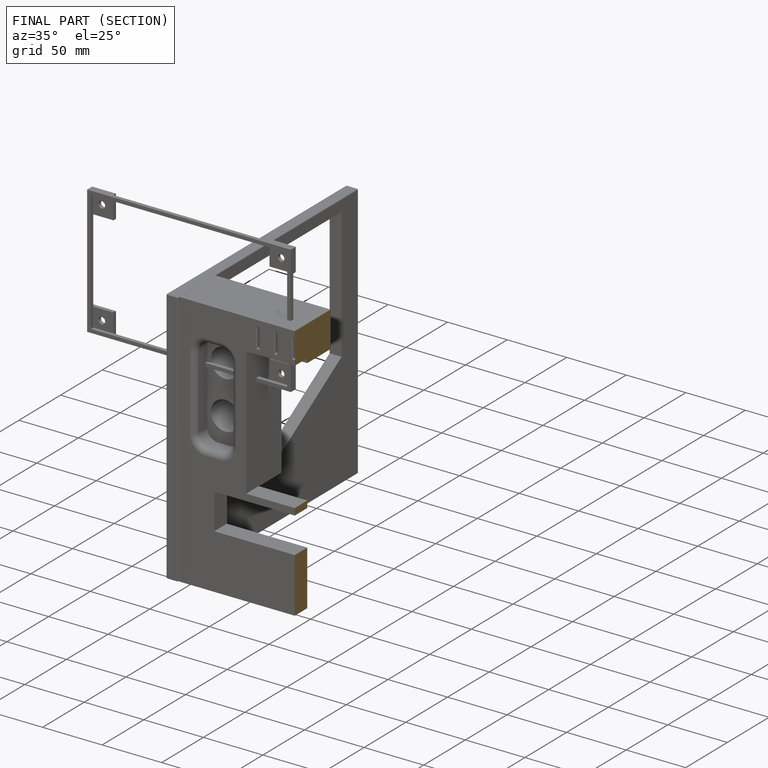
[diagram: finished part — half-section view (interior)]
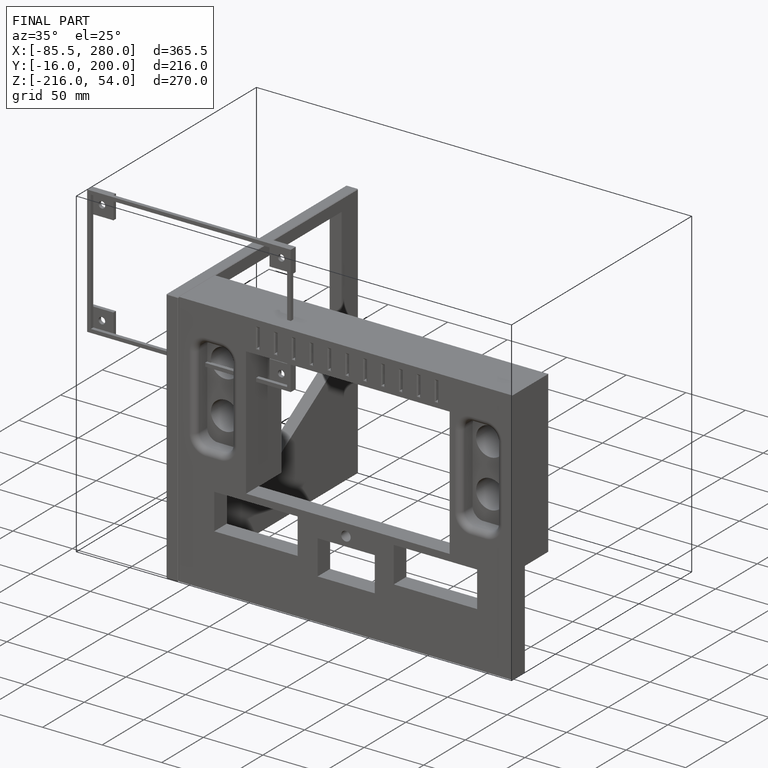
[diagram: finished part — iso view with bounding-box wireframe]
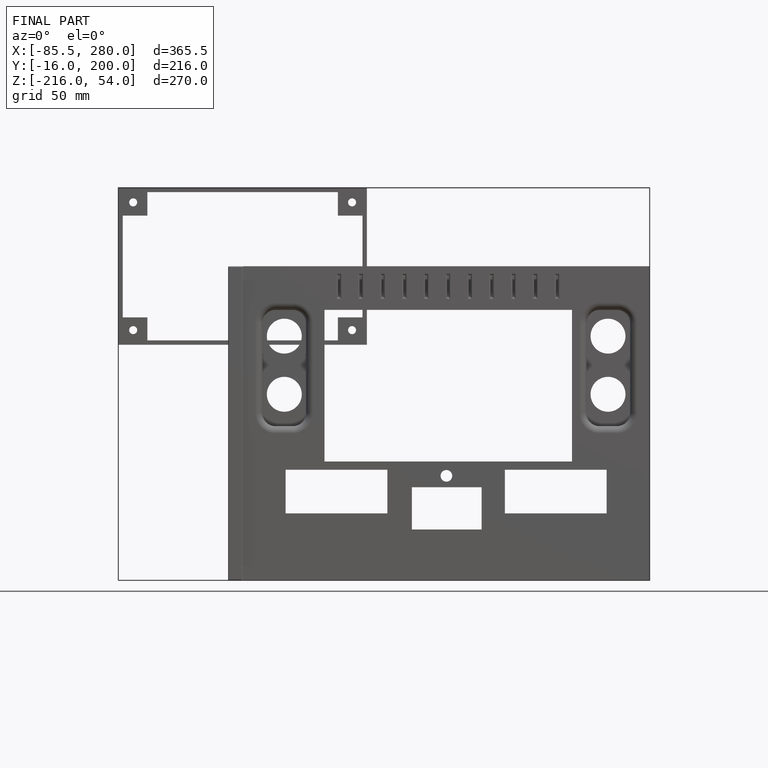
[diagram: finished part — front view with bounding-box wireframe]
